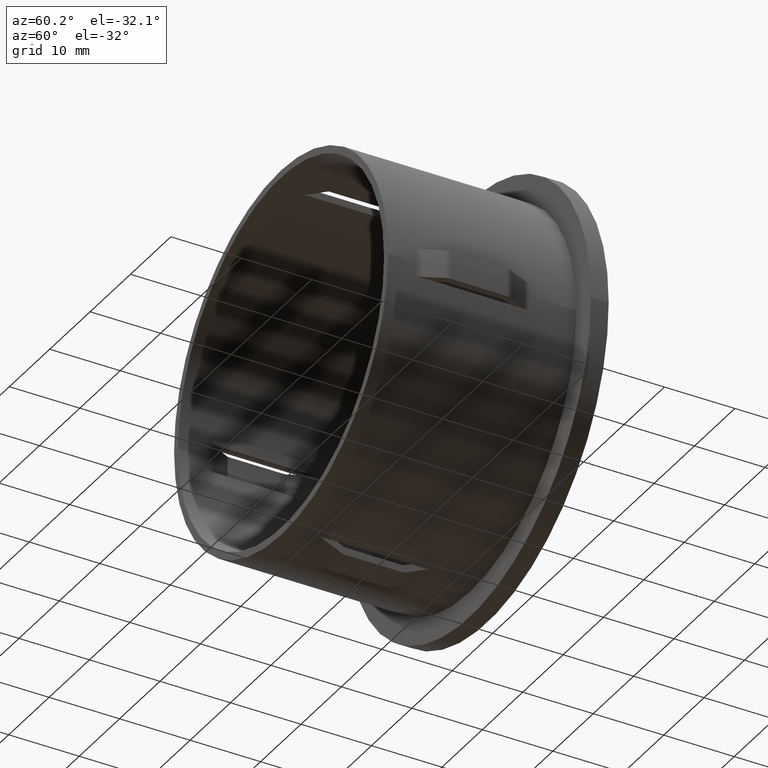
[diagram: clean part render]
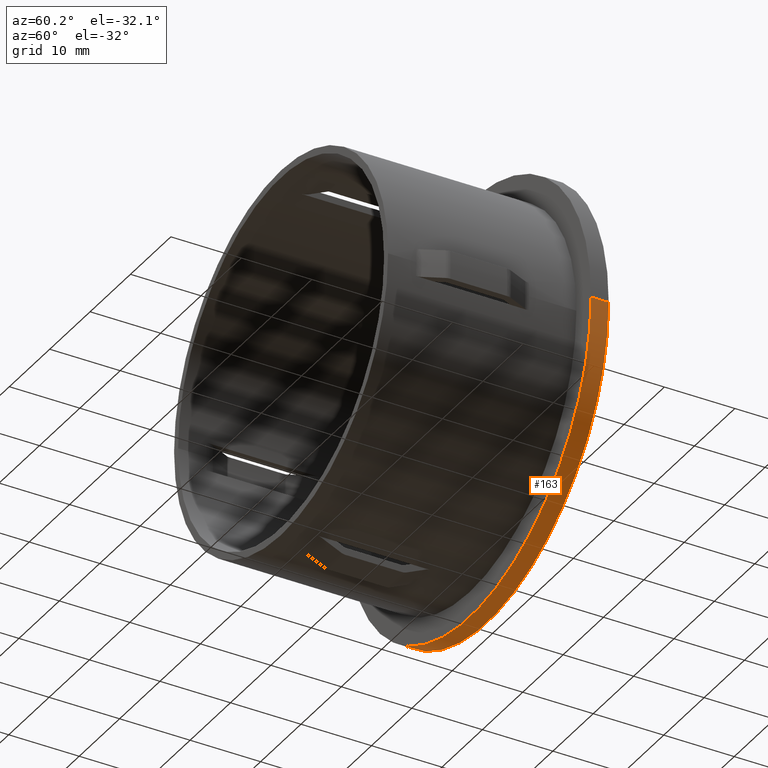
[diagram: same view with one face highlighted and labeled with its STEP entity id]
A machine part, auxiliary view. The second image highlights one B-rep face of the part: STEP entity #163.
In plain terms, the highlighted cylindrical surface (partial cylindrical patch) has radius 30.15 mm, axis along (-0, 1, -0).
Its self-contained STEP definition (entity closure, byte-faithful):
#163 = ADVANCED_FACE ( 'NONE', ( #4703 ), #1536, .T. ) ;
#209 = EDGE_CURVE ( 'NONE', #12961, #5999, #1942, .T. ) ;
#1536 = CYLINDRICAL_SURFACE ( 'NONE', #8841, 30.14999999999999500 ) ;
#1821 = VERTEX_POINT ( 'NONE', #14262 ) ;
#1870 = ORIENTED_EDGE ( 'NONE', *, *, #3866, .T. ) ;
#1928 = CIRCLE ( 'NONE', #2819, 30.14999999999999900 ) ;
#1942 = LINE ( 'NONE', #11956, #14037 ) ;
#2035 = DIRECTION ( 'NONE',  ( -1.224646799147353200E-016, 1.000000000000000000, -0.0000000000000000000 ) ) ;
#2819 = AXIS2_PLACEMENT_3D ( 'NONE', #3153, #15770, #4397 ) ;
#2892 = VERTEX_POINT ( 'NONE', #8832 ) ;
#3153 = CARTESIAN_POINT ( 'NONE',  ( -1.224646799147349800E-016, 29.19999999999999600, 0.0000000000000000000 ) ) ;
#3268 = DIRECTION ( 'NONE',  ( -1.224646799147353200E-016, 1.000000000000000000, -0.0000000000000000000 ) ) ;
#3866 = EDGE_CURVE ( 'NONE', #12961, #2892, #15191, .T. ) ;
#4397 = DIRECTION ( 'NONE',  ( -1.000000000000000000, -1.150728673948130800E-016, 0.0000000000000000000 ) ) ;
#4703 = FACE_OUTER_BOUND ( 'NONE', #7856, .T. ) ;
#5599 = VECTOR ( 'NONE', #12011, 1000.000000000000000 ) ;
#5761 = DIRECTION ( 'NONE',  ( -1.000000000000000000, -1.150728673948131100E-016, 0.0000000000000000000 ) ) ;
#5999 = VERTEX_POINT ( 'NONE', #8393 ) ;
#6808 = LINE ( 'NONE', #11947, #5599 ) ;
#7199 = CARTESIAN_POINT ( 'NONE',  ( 1.836970198721031900E-016, 26.69999999999999900, 0.0000000000000000000 ) ) ;
#7856 = EDGE_LOOP ( 'NONE', ( #16049, #1870, #10620, #15785 ) ) ;
#8393 = CARTESIAN_POINT ( 'NONE',  ( 30.15000000000000200, 29.19999999999999900, 3.692310099429270400E-015 ) ) ;
#8472 = AXIS2_PLACEMENT_3D ( 'NONE', #7199, #2035, #5761 ) ;
#8639 = EDGE_CURVE ( 'NONE', #2892, #1821, #6808, .T. ) ;
#8832 = CARTESIAN_POINT ( 'NONE',  ( -30.14999999999999500, 26.69999999999999600, 0.0000000000000000000 ) ) ;
#8841 = AXIS2_PLACEMENT_3D ( 'NONE', #9574, #3268, #12127 ) ;
#9574 = CARTESIAN_POINT ( 'NONE',  ( -1.224646799147354400E-016, 29.19999999999999900, 0.0000000000000000000 ) ) ;
#10620 = ORIENTED_EDGE ( 'NONE', *, *, #8639, .T. ) ;
#11432 = CARTESIAN_POINT ( 'NONE',  ( 30.14999999999999500, 26.70000000000000300, 3.692310099429269600E-015 ) ) ;
#11947 = CARTESIAN_POINT ( 'NONE',  ( -30.14999999999999500, 29.19999999999999600, 0.0000000000000000000 ) ) ;
#11956 = CARTESIAN_POINT ( 'NONE',  ( 30.14999999999999500, 29.20000000000000300, 3.692310099429269600E-015 ) ) ;
#12011 = DIRECTION ( 'NONE',  ( -1.224646799147353200E-016, 1.000000000000000000, -0.0000000000000000000 ) ) ;
#12127 = DIRECTION ( 'NONE',  ( -1.000000000000000000, -1.150728673948131100E-016, 0.0000000000000000000 ) ) ;
#12961 = VERTEX_POINT ( 'NONE', #11432 ) ;
#14037 = VECTOR ( 'NONE', #14930, 1000.000000000000000 ) ;
#14262 = CARTESIAN_POINT ( 'NONE',  ( -30.14999999999999900, 29.19999999999999200, 0.0000000000000000000 ) ) ;
#14930 = DIRECTION ( 'NONE',  ( -1.224646799147353200E-016, 1.000000000000000000, -0.0000000000000000000 ) ) ;
#15191 = CIRCLE ( 'NONE', #8472, 30.14999999999999500 ) ;
#15391 = EDGE_CURVE ( 'NONE', #5999, #1821, #1928, .T. ) ;
#15770 = DIRECTION ( 'NONE',  ( -1.224646799147353200E-016, 1.000000000000000000, -0.0000000000000000000 ) ) ;
#15785 = ORIENTED_EDGE ( 'NONE', *, *, #15391, .F. ) ;
#16049 = ORIENTED_EDGE ( 'NONE', *, *, #209, .F. ) ;